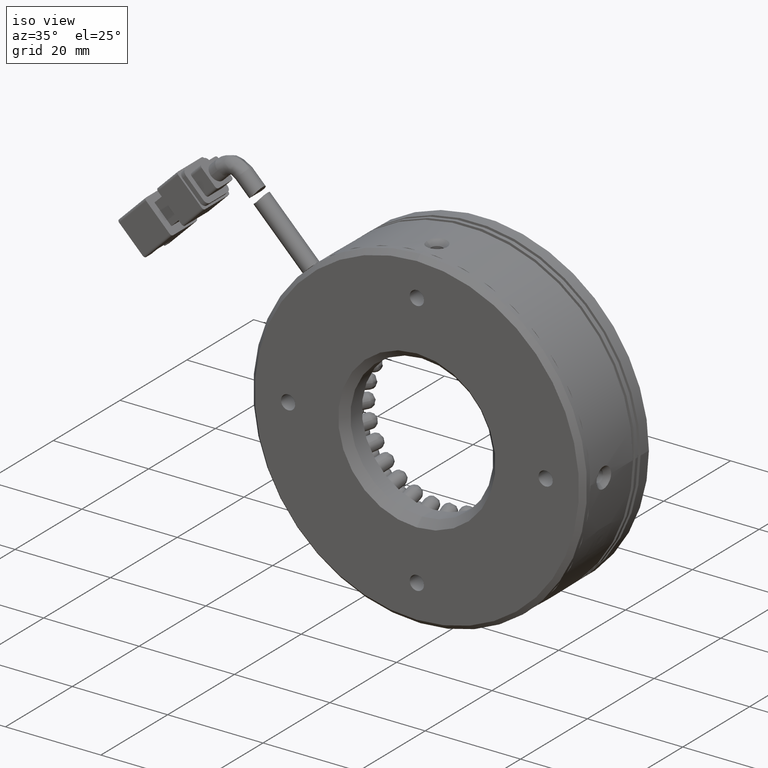
[diagram: clean part render]
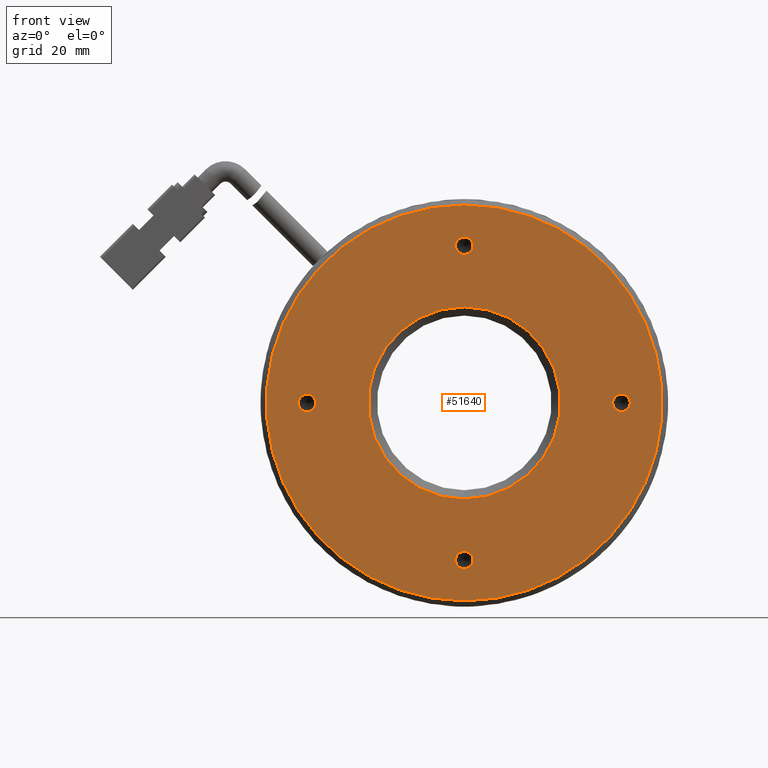
[diagram: tour spotlight — one face highlighted and labeled with its STEP entity id]
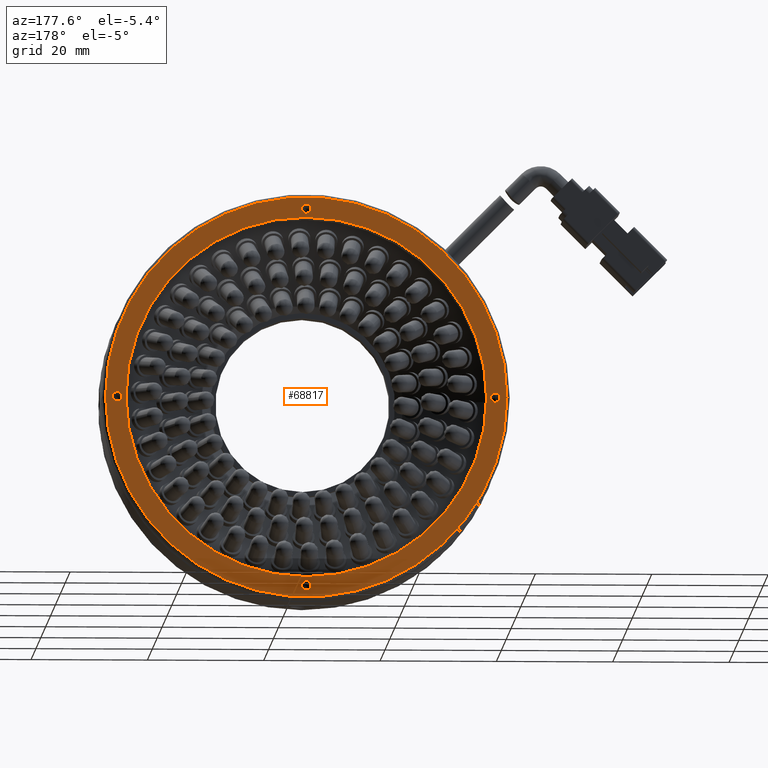
[diagram: tour spotlight — one face highlighted and labeled with its STEP entity id]
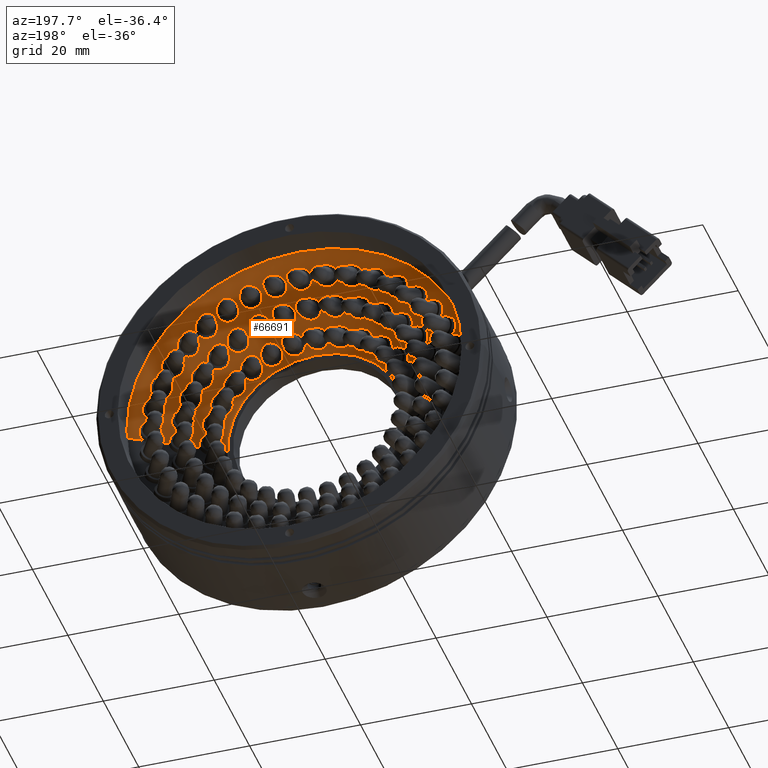
[diagram: tour spotlight — one face highlighted and labeled with its STEP entity id]
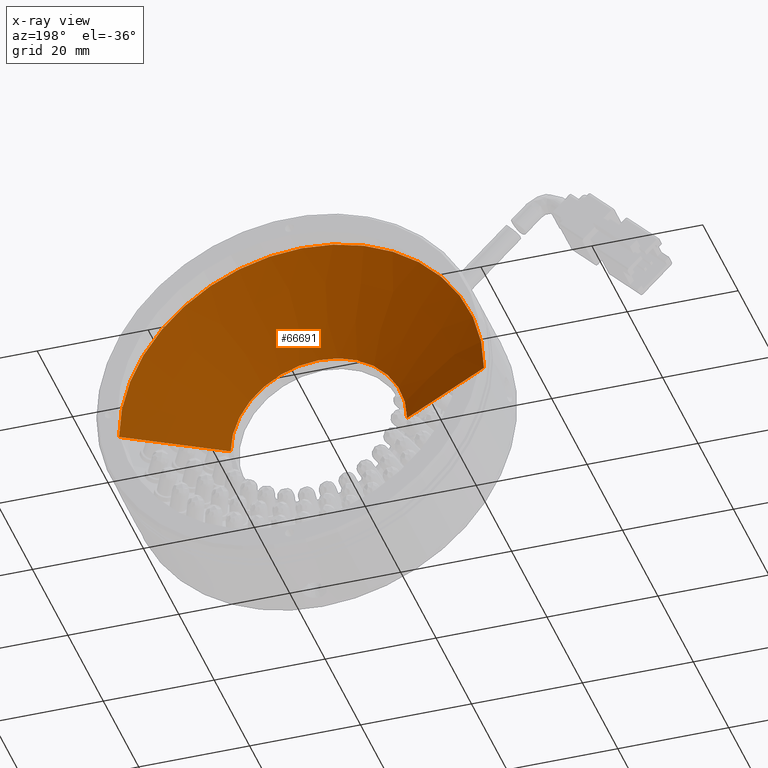
[diagram: x-ray of the same camera — body ghosted, this tour face saturated]
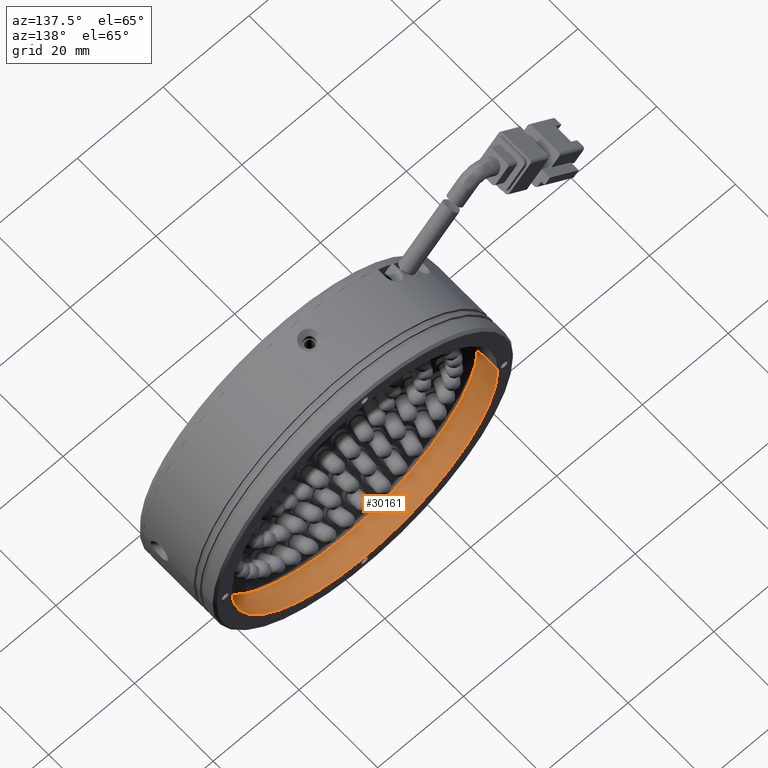
[diagram: tour spotlight — one face highlighted and labeled with its STEP entity id]
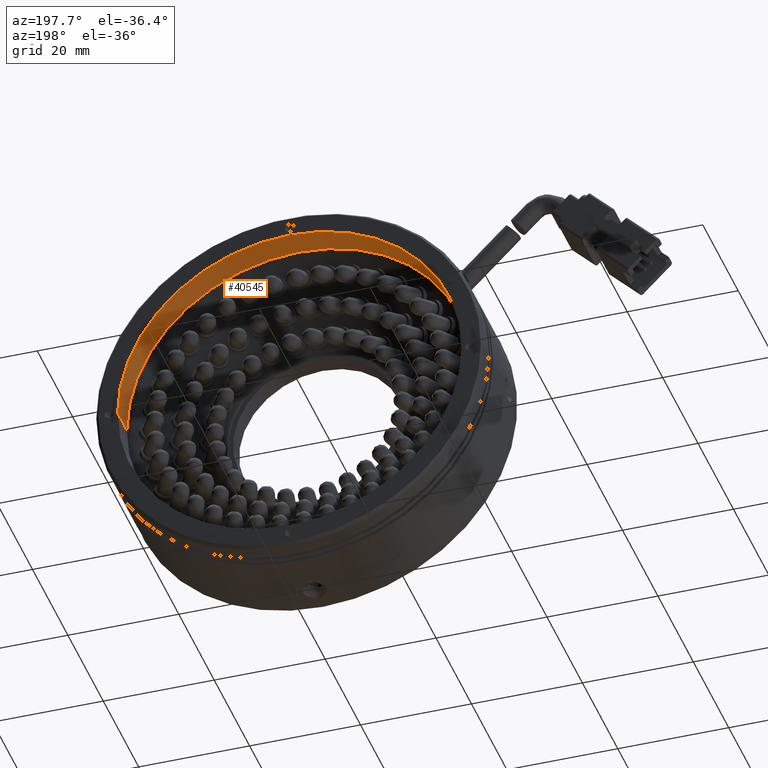
[diagram: tour spotlight — one face highlighted and labeled with its STEP entity id]
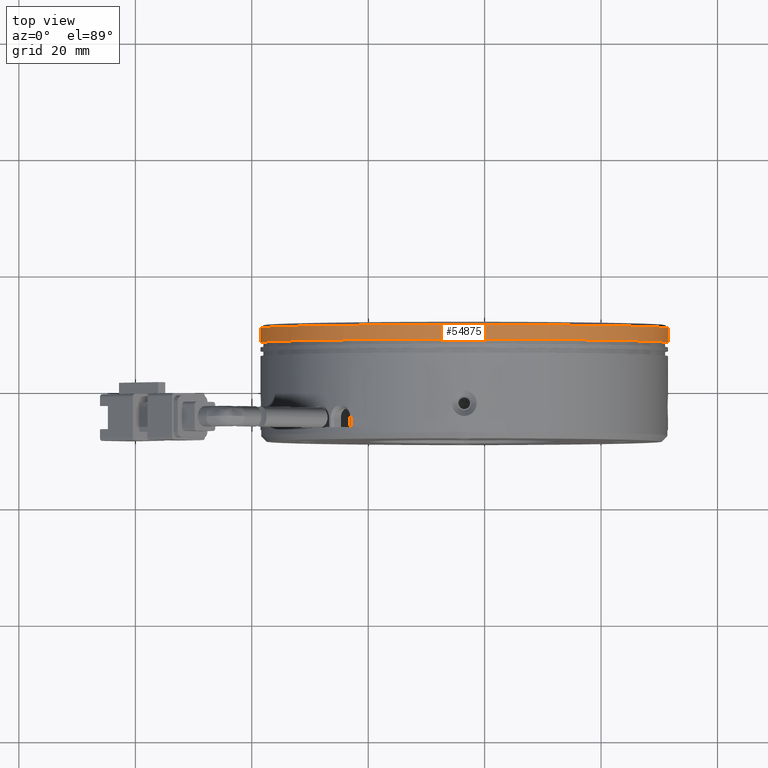
[diagram: tour spotlight — one face highlighted and labeled with its STEP entity id]
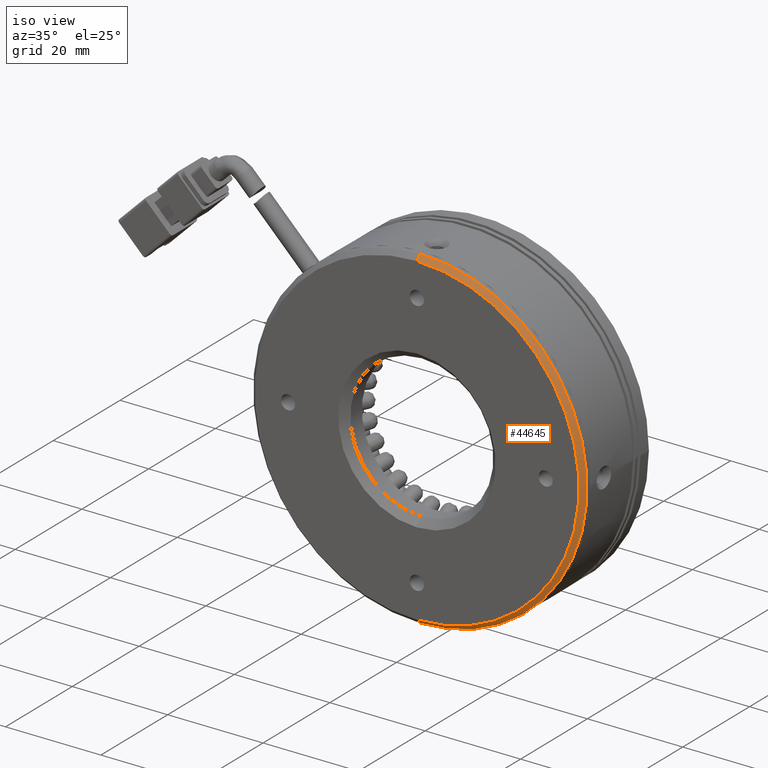
[diagram: tour spotlight — one face highlighted and labeled with its STEP entity id]
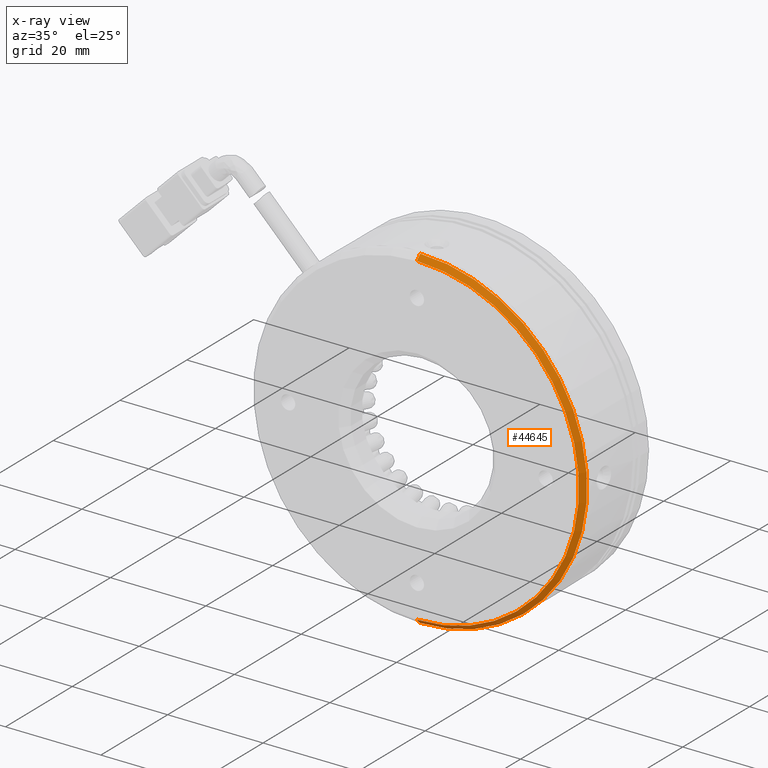
[diagram: x-ray of the same camera — body ghosted, this tour face saturated]
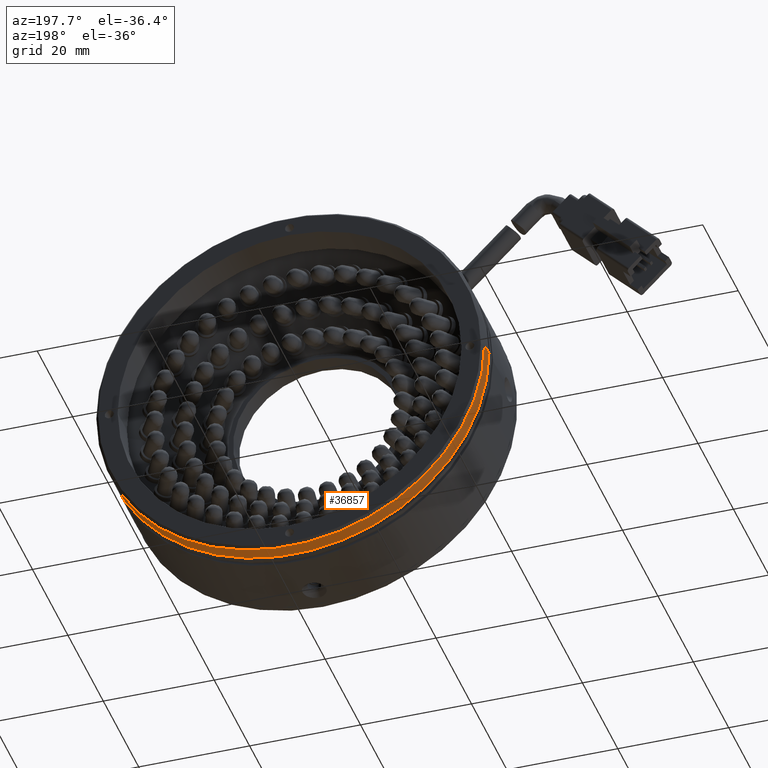
[diagram: tour spotlight — one face highlighted and labeled with its STEP entity id]
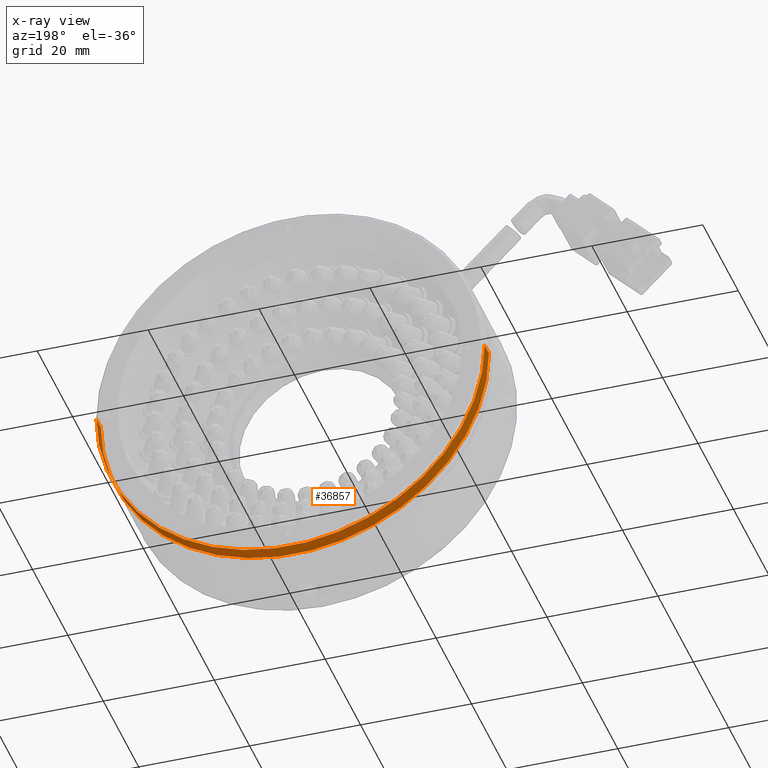
[diagram: x-ray of the same camera — body ghosted, this tour face saturated]
A machine part: a face-by-face anatomy tour. The part has 1954 B-rep faces; the first image is the clean iso view, then the 8 largest visible faces are spotlighted one at a time (largest first), each with its STEP entity span.

Face 1 — front view, entity #51640. In plain terms, the highlighted planar face has unit normal (0, -1, 0).
Definition (entity closure, byte-faithful):
#941 = CARTESIAN_POINT ( 'NONE',  ( -3.499229287090545300, 31.07623868994505800, -28.50000000000000000 ) ) ;
#1166 = CARTESIAN_POINT ( 'NONE',  ( -3.499229287090538600, 31.07623868994505800, 0.0000000000000000000 ) ) ;
#1881 = EDGE_LOOP ( 'NONE', ( #38550, #59611 ) ) ;
#2691 = EDGE_CURVE ( 'NONE', #34625, #22174, #56121, .T. ) ;
#3377 = EDGE_CURVE ( 'NONE', #65787, #82237, #54757, .T. ) ;
#3824 = ORIENTED_EDGE ( 'NONE', *, *, #18593, .T. ) ;
#6378 = AXIS2_PLACEMENT_3D ( 'NONE', #79701, #37764, #86730 ) ;
#6756 = DIRECTION ( 'NONE',  ( 0.0000000000000000000, -1.000000000000000000, -0.0000000000000000000 ) ) ;
#8187 = DIRECTION ( 'NONE',  ( 0.0000000000000000000, 0.0000000000000000000, -1.000000000000000000 ) ) ;
#8671 = AXIS2_PLACEMENT_3D ( 'NONE', #14445, #63341, #21447 ) ;
#8914 = AXIS2_PLACEMENT_3D ( 'NONE', #80669, #38718, #87684 ) ;
#10877 = VERTEX_POINT ( 'NONE', #28443 ) ;
#11444 = CARTESIAN_POINT ( 'NONE',  ( -3.499229287090545300, 31.07623868994505800, -27.00000000000000000 ) ) ;
#12126 = CIRCLE ( 'NONE', #25657, 1.500000000000001300 ) ;
#12301 = ORIENTED_EDGE ( 'NONE', *, *, #14550, .T. ) ;
#14445 = CARTESIAN_POINT ( 'NONE',  ( -38.49922928709052200, 31.07623868994505800, 0.0000000000000000000 ) ) ;
#14550 = EDGE_CURVE ( 'NONE', #17597, #58041, #64328, .T. ) ;
#14962 = EDGE_LOOP ( 'NONE', ( #26772, #28349 ) ) ;
#15700 = CIRCLE ( 'NONE', #62148, 1.500000000000001300 ) ;
#17064 = EDGE_LOOP ( 'NONE', ( #44027, #12301 ) ) ;
#17129 = CARTESIAN_POINT ( 'NONE',  ( 23.50077071290945000, 31.07623868994505800, 0.0000000000000000000 ) ) ;
#17597 = VERTEX_POINT ( 'NONE', #63589 ) ;
#18286 = EDGE_CURVE ( 'NONE', #10877, #41958, #15700, .T. ) ;
#18462 = DIRECTION ( 'NONE',  ( 0.0000000000000000000, 0.0000000000000000000, -1.000000000000000000 ) ) ;
#18593 = EDGE_CURVE ( 'NONE', #54168, #90053, #56046, .T. ) ;
#21447 = DIRECTION ( 'NONE',  ( 0.0000000000000000000, -0.0000000000000000000, -1.000000000000000000 ) ) ;
#22174 = VERTEX_POINT ( 'NONE', #36295 ) ;
#23085 = DIRECTION ( 'NONE',  ( 0.0000000000000000000, 1.000000000000000000, 0.0000000000000000000 ) ) ;
#23534 = ORIENTED_EDGE ( 'NONE', *, *, #18286, .T. ) ;
#23947 = EDGE_CURVE ( 'NONE', #51920, #35992, #47134, .T. ) ;
#24121 = DIRECTION ( 'NONE',  ( 0.0000000000000000000, 0.0000000000000000000, -1.000000000000000000 ) ) ;
#24631 = CIRCLE ( 'NONE', #69310, 1.500000000000001300 ) ;
#25657 = AXIS2_PLACEMENT_3D ( 'NONE', #36323, #85277, #43354 ) ;
#26772 = ORIENTED_EDGE ( 'NONE', *, *, #3377, .T. ) ;
#27599 = EDGE_CURVE ( 'NONE', #82237, #65787, #51006, .T. ) ;
#28170 = PLANE ( 'NONE',  #8671 ) ;
#28349 = ORIENTED_EDGE ( 'NONE', *, *, #27599, .T. ) ;
#28443 = CARTESIAN_POINT ( 'NONE',  ( -3.499229287090545300, 31.07623868994505800, 28.50000000000000000 ) ) ;
#30192 = DIRECTION ( 'NONE',  ( 0.0000000000000000000, -1.000000000000000000, -0.0000000000000000000 ) ) ;
#33815 = CARTESIAN_POINT ( 'NONE',  ( -3.499229287090545300, 31.07623868994505800, 25.50000000000000000 ) ) ;
#34092 = ORIENTED_EDGE ( 'NONE', *, *, #65651, .T. ) ;
#34260 = FACE_BOUND ( 'NONE', #14962, .T. ) ;
#34625 = VERTEX_POINT ( 'NONE', #67790 ) ;
#35992 = VERTEX_POINT ( 'NONE', #44361 ) ;
#36295 = CARTESIAN_POINT ( 'NONE',  ( -3.499229287090534200, 31.07623868994505000, -33.99999999999997900 ) ) ;
#36323 = CARTESIAN_POINT ( 'NONE',  ( -3.499229287090545300, 31.07623868994505800, 27.00000000000000000 ) ) ;
#37209 = CARTESIAN_POINT ( 'NONE',  ( -3.499229287090545300, 31.07623868994505800, 27.00000000000000000 ) ) ;
#37473 = CIRCLE ( 'NONE', #82036, 16.50000000000002800 ) ;
#37764 = DIRECTION ( 'NONE',  ( 0.0000000000000000000, 1.000000000000000000, 0.0000000000000000000 ) ) ;
#38550 = ORIENTED_EDGE ( 'NONE', *, *, #2691, .T. ) ;
#38718 = DIRECTION ( 'NONE',  ( -0.0000000000000000000, 1.000000000000000000, -0.0000000000000000000 ) ) ;
#39317 = EDGE_CURVE ( 'NONE', #22174, #34625, #59267, .T. ) ;
#39514 = ORIENTED_EDGE ( 'NONE', *, *, #40786, .T. ) ;
#39932 = CARTESIAN_POINT ( 'NONE',  ( 23.50077071290945000, 31.07623868994505800, -1.500000000000001300 ) ) ;
#40786 = EDGE_CURVE ( 'NONE', #90053, #54168, #50489, .T. ) ;
#40791 = CARTESIAN_POINT ( 'NONE',  ( -3.499229287090545300, 31.07623868994505800, -27.00000000000000000 ) ) ;
#41808 = DIRECTION ( 'NONE',  ( 0.0000000000000000000, 1.000000000000000000, 0.0000000000000000000 ) ) ;
#41958 = VERTEX_POINT ( 'NONE', #33815 ) ;
#43354 = DIRECTION ( 'NONE',  ( 0.0000000000000000000, 0.0000000000000000000, -1.000000000000000000 ) ) ;
#44027 = ORIENTED_EDGE ( 'NONE', *, *, #54345, .T. ) ;
#44237 = DIRECTION ( 'NONE',  ( 0.0000000000000000000, 0.0000000000000000000, -1.000000000000000000 ) ) ;
#44361 = CARTESIAN_POINT ( 'NONE',  ( -3.499229287090538600, 31.07623868994505800, -16.50000000000002800 ) ) ;
#45493 = EDGE_LOOP ( 'NONE', ( #3824, #39514 ) ) ;
#47134 = CIRCLE ( 'NONE', #8914, 16.50000000000002800 ) ;
#47832 = DIRECTION ( 'NONE',  ( 0.0000000000000000000, 0.0000000000000000000, -1.000000000000000000 ) ) ;
#48086 = CARTESIAN_POINT ( 'NONE',  ( -3.499229287090545300, 31.07623868994505800, -25.50000000000000000 ) ) ;
#48677 = CARTESIAN_POINT ( 'NONE',  ( -3.499229287090538600, 31.07623868994505000, 0.0000000000000000000 ) ) ;
#50095 = DIRECTION ( 'NONE',  ( -0.0000000000000000000, 1.000000000000000000, -0.0000000000000000000 ) ) ;
#50314 = CARTESIAN_POINT ( 'NONE',  ( -30.49922928709055000, 31.07623868994505800, 1.499999999999998700 ) ) ;
#50489 = CIRCLE ( 'NONE', #81395, 1.500000000000001300 ) ;
#50675 = FACE_OUTER_BOUND ( 'NONE', #1881, .T. ) ;
#51006 = CIRCLE ( 'NONE', #53997, 1.499999999999998700 ) ;
#51640 = ADVANCED_FACE ( 'NONE', ( #52929, #90081, #87924, #34260, #71462, #50675 ), #28170, .T. ) ;
#51920 = VERTEX_POINT ( 'NONE', #53305 ) ;
#52929 = FACE_BOUND ( 'NONE', #45493, .T. ) ;
#53305 = CARTESIAN_POINT ( 'NONE',  ( -3.499229287090536400, 31.07623868994505800, 16.50000000000002800 ) ) ;
#53383 = EDGE_LOOP ( 'NONE', ( #34092, #23534 ) ) ;
#53997 = AXIS2_PLACEMENT_3D ( 'NONE', #64957, #23085, #72048 ) ;
#54168 = VERTEX_POINT ( 'NONE', #941 ) ;
#54345 = EDGE_CURVE ( 'NONE', #58041, #17597, #24631, .T. ) ;
#54757 = CIRCLE ( 'NONE', #89045, 1.499999999999998700 ) ;
#55721 = DIRECTION ( 'NONE',  ( 0.0000000000000000000, 0.0000000000000000000, 1.000000000000000000 ) ) ;
#56046 = CIRCLE ( 'NONE', #72805, 1.500000000000001300 ) ;
#56121 = CIRCLE ( 'NONE', #64870, 33.99999999999997900 ) ;
#58041 = VERTEX_POINT ( 'NONE', #39932 ) ;
#58291 = ORIENTED_EDGE ( 'NONE', *, *, #86415, .T. ) ;
#59267 = CIRCLE ( 'NONE', #70635, 33.99999999999997900 ) ;
#59611 = ORIENTED_EDGE ( 'NONE', *, *, #39317, .T. ) ;
#60337 = DIRECTION ( 'NONE',  ( 0.0000000000000000000, 1.000000000000000000, 0.0000000000000000000 ) ) ;
#62148 = AXIS2_PLACEMENT_3D ( 'NONE', #37209, #86182, #44237 ) ;
#63341 = DIRECTION ( 'NONE',  ( 0.0000000000000000000, -1.000000000000000000, 0.0000000000000000000 ) ) ;
#63589 = CARTESIAN_POINT ( 'NONE',  ( 23.50077071290945000, 31.07623868994505800, 1.500000000000001300 ) ) ;
#64328 = CIRCLE ( 'NONE', #6378, 1.500000000000001300 ) ;
#64870 = AXIS2_PLACEMENT_3D ( 'NONE', #72135, #30192, #79193 ) ;
#64957 = CARTESIAN_POINT ( 'NONE',  ( -30.49922928709055000, 31.07623868994505800, 2.710505431213761100E-017 ) ) ;
#65651 = EDGE_CURVE ( 'NONE', #41958, #10877, #12126, .T. ) ;
#65787 = VERTEX_POINT ( 'NONE', #72713 ) ;
#66011 = DIRECTION ( 'NONE',  ( 0.0000000000000000000, 1.000000000000000000, 0.0000000000000000000 ) ) ;
#67790 = CARTESIAN_POINT ( 'NONE',  ( -3.499229287090538600, 31.07623868994505000, 33.99999999999997900 ) ) ;
#69310 = AXIS2_PLACEMENT_3D ( 'NONE', #17129, #66011, #24121 ) ;
#69662 = ORIENTED_EDGE ( 'NONE', *, *, #23947, .T. ) ;
#70635 = AXIS2_PLACEMENT_3D ( 'NONE', #48677, #6756, #55721 ) ;
#71462 = FACE_BOUND ( 'NONE', #90577, .T. ) ;
#72048 = DIRECTION ( 'NONE',  ( 0.0000000000000000000, 0.0000000000000000000, -1.000000000000000000 ) ) ;
#72135 = CARTESIAN_POINT ( 'NONE',  ( -3.499229287090538600, 31.07623868994505000, 0.0000000000000000000 ) ) ;
#72713 = CARTESIAN_POINT ( 'NONE',  ( -30.49922928709055000, 31.07623868994505800, -1.499999999999998700 ) ) ;
#72805 = AXIS2_PLACEMENT_3D ( 'NONE', #40791, #89772, #47832 ) ;
#79193 = DIRECTION ( 'NONE',  ( 0.0000000000000000000, 0.0000000000000000000, 1.000000000000000000 ) ) ;
#79701 = CARTESIAN_POINT ( 'NONE',  ( 23.50077071290945000, 31.07623868994505800, 0.0000000000000000000 ) ) ;
#80669 = CARTESIAN_POINT ( 'NONE',  ( -3.499229287090538600, 31.07623868994505800, 0.0000000000000000000 ) ) ;
#81395 = AXIS2_PLACEMENT_3D ( 'NONE', #11444, #60337, #18462 ) ;
#82036 = AXIS2_PLACEMENT_3D ( 'NONE', #1166, #50095, #8187 ) ;
#82237 = VERTEX_POINT ( 'NONE', #50314 ) ;
#83736 = CARTESIAN_POINT ( 'NONE',  ( -30.49922928709055000, 31.07623868994505800, 2.710505431213761100E-017 ) ) ;
#85277 = DIRECTION ( 'NONE',  ( 0.0000000000000000000, 1.000000000000000000, 0.0000000000000000000 ) ) ;
#86182 = DIRECTION ( 'NONE',  ( 0.0000000000000000000, 1.000000000000000000, 0.0000000000000000000 ) ) ;
#86415 = EDGE_CURVE ( 'NONE', #35992, #51920, #37473, .T. ) ;
#86730 = DIRECTION ( 'NONE',  ( 0.0000000000000000000, 0.0000000000000000000, -1.000000000000000000 ) ) ;
#87684 = DIRECTION ( 'NONE',  ( 0.0000000000000000000, 0.0000000000000000000, -1.000000000000000000 ) ) ;
#87924 = FACE_BOUND ( 'NONE', #17064, .T. ) ;
#89045 = AXIS2_PLACEMENT_3D ( 'NONE', #83736, #41808, #90772 ) ;
#89772 = DIRECTION ( 'NONE',  ( 0.0000000000000000000, 1.000000000000000000, 0.0000000000000000000 ) ) ;
#90053 = VERTEX_POINT ( 'NONE', #48086 ) ;
#90081 = FACE_BOUND ( 'NONE', #53383, .T. ) ;
#90577 = EDGE_LOOP ( 'NONE', ( #58291, #69662 ) ) ;
#90772 = DIRECTION ( 'NONE',  ( 0.0000000000000000000, 0.0000000000000000000, -1.000000000000000000 ) ) ;

Face 2 — auxiliary view, entity #68817. In plain terms, the highlighted planar face has unit normal (0, 1, 0).
Definition (entity closure, byte-faithful):
#141 = ORIENTED_EDGE ( 'NONE', *, *, #24473, .T. ) ;
#189 = EDGE_CURVE ( 'NONE', #47876, #30437, #87108, .T. ) ;
#234 = AXIS2_PLACEMENT_3D ( 'NONE', #6126, #55094, #13156 ) ;
#1588 = FACE_BOUND ( 'NONE', #2712, .T. ) ;
#2418 = CARTESIAN_POINT ( 'NONE',  ( -3.499229287090496400, 51.07623868994505800, -6.938893903907228400E-015 ) ) ;
#2497 = ORIENTED_EDGE ( 'NONE', *, *, #71999, .T. ) ;
#2712 = EDGE_LOOP ( 'NONE', ( #22106, #82778 ) ) ;
#3459 = CIRCLE ( 'NONE', #69104, 0.7999999999999947200 ) ;
#3623 = AXIS2_PLACEMENT_3D ( 'NONE', #62589, #20707, #69667 ) ;
#6091 = CARTESIAN_POINT ( 'NONE',  ( 29.00077071290950300, 51.07623868994505800, -3.330669073875469600E-013 ) ) ;
#6126 = CARTESIAN_POINT ( 'NONE',  ( -35.99922928709050000, 51.07623868994505800, 1.040834085586084300E-013 ) ) ;
#6599 = AXIS2_PLACEMENT_3D ( 'NONE', #25783, #74758, #32843 ) ;
#7380 = CARTESIAN_POINT ( 'NONE',  ( -2.699229287090507200, 51.07623868994505800, 32.49999999999998600 ) ) ;
#7591 = AXIS2_PLACEMENT_3D ( 'NONE', #79576, #37636, #86605 ) ;
#8155 = FACE_BOUND ( 'NONE', #8947, .T. ) ;
#8280 = CARTESIAN_POINT ( 'NONE',  ( -35.99922928709050000, 51.07623868994505800, 1.040834085586084300E-013 ) ) ;
#8947 = EDGE_LOOP ( 'NONE', ( #38501, #79039 ) ) ;
#8995 = CARTESIAN_POINT ( 'NONE',  ( -3.499229287090489300, 51.07623868994505800, -35.00000000000001400 ) ) ;
#9412 = DIRECTION ( 'NONE',  ( 1.000000000000000000, 0.0000000000000000000, 1.942890293094023700E-016 ) ) ;
#13121 = DIRECTION ( 'NONE',  ( -1.000000000000000000, 0.0000000000000000000, -1.942890293093821800E-016 ) ) ;
#13156 = DIRECTION ( 'NONE',  ( -1.000000000000000000, 0.0000000000000000000, -1.942890293093975900E-016 ) ) ;
#13198 = CARTESIAN_POINT ( 'NONE',  ( -3.499229287090502200, 51.07623868994505800, 32.49999999999998600 ) ) ;
#14860 = CIRCLE ( 'NONE', #71048, 0.7999999999999986000 ) ;
#15006 = CARTESIAN_POINT ( 'NONE',  ( 28.20077071290951000, 51.07623868994505800, -3.332223386109944400E-013 ) ) ;
#15290 = DIRECTION ( 'NONE',  ( -1.000000000000000000, 0.0000000000000000000, -1.942890293093975900E-016 ) ) ;
#15589 = AXIS2_PLACEMENT_3D ( 'NONE', #2418, #51350, #9412 ) ;
#15637 = EDGE_CURVE ( 'NONE', #26985, #79813, #77008, .T. ) ;
#19985 = CARTESIAN_POINT ( 'NONE',  ( 29.80077071290950000, 51.07623868994505800, -3.328135044201676600E-013 ) ) ;
#20120 = FACE_BOUND ( 'NONE', #37277, .T. ) ;
#20199 = DIRECTION ( 'NONE',  ( -1.000000000000000000, 0.0000000000000000000, 0.0000000000000000000 ) ) ;
#20707 = DIRECTION ( 'NONE',  ( -0.0000000000000000000, -1.000000000000000000, -0.0000000000000000000 ) ) ;
#22106 = ORIENTED_EDGE ( 'NONE', *, *, #86631, .T. ) ;
#22749 = EDGE_CURVE ( 'NONE', #33603, #86284, #69373, .T. ) ;
#24473 = EDGE_CURVE ( 'NONE', #79813, #26985, #81624, .T. ) ;
#24851 = DIRECTION ( 'NONE',  ( -0.0000000000000000000, -1.000000000000000000, -0.0000000000000000000 ) ) ;
#25654 = ORIENTED_EDGE ( 'NONE', *, *, #76318, .T. ) ;
#25783 = CARTESIAN_POINT ( 'NONE',  ( -3.499229287090496400, 51.07623868994505800, -6.938893903907228400E-015 ) ) ;
#26734 = VERTEX_POINT ( 'NONE', #62035 ) ;
#26882 = DIRECTION ( 'NONE',  ( 0.0000000000000000000, 1.000000000000000000, 0.0000000000000000000 ) ) ;
#26985 = VERTEX_POINT ( 'NONE', #85645 ) ;
#27115 = AXIS2_PLACEMENT_3D ( 'NONE', #8280, #57184, #15290 ) ;
#27905 = CARTESIAN_POINT ( 'NONE',  ( 27.50077071290950300, 51.07623868994505800, 2.880471082041037800E-015 ) ) ;
#28703 = CARTESIAN_POINT ( 'NONE',  ( 29.00077071290950300, 51.07623868994505800, -3.330669073875469600E-013 ) ) ;
#29231 = AXIS2_PLACEMENT_3D ( 'NONE', #37379, #86363, #44436 ) ;
#30396 = VERTEX_POINT ( 'NONE', #7380 ) ;
#30437 = VERTEX_POINT ( 'NONE', #15006 ) ;
#32843 = DIRECTION ( 'NONE',  ( 1.000000000000000000, 0.0000000000000000000, 1.942890293094023700E-016 ) ) ;
#33350 = CIRCLE ( 'NONE', #7591, 0.7999999999999947200 ) ;
#33603 = VERTEX_POINT ( 'NONE', #27905 ) ;
#34739 = EDGE_LOOP ( 'NONE', ( #65005, #58458 ) ) ;
#35369 = DIRECTION ( 'NONE',  ( -0.0000000000000000000, -1.000000000000000000, -0.0000000000000000000 ) ) ;
#35779 = DIRECTION ( 'NONE',  ( -1.000000000000000000, 0.0000000000000000000, -1.942890293093821800E-016 ) ) ;
#36594 = FACE_BOUND ( 'NONE', #34739, .T. ) ;
#36631 = CARTESIAN_POINT ( 'NONE',  ( 31.00077071290950700, 51.07623868994505800, -2.359223927328467500E-016 ) ) ;
#37277 = EDGE_LOOP ( 'NONE', ( #51946, #58208 ) ) ;
#37379 = CARTESIAN_POINT ( 'NONE',  ( -3.499229287090496400, 51.07623868994505800, -6.938893903907228400E-015 ) ) ;
#37636 = DIRECTION ( 'NONE',  ( -0.0000000000000000000, -1.000000000000000000, -0.0000000000000000000 ) ) ;
#38501 = ORIENTED_EDGE ( 'NONE', *, *, #42379, .T. ) ;
#38716 = EDGE_LOOP ( 'NONE', ( #141, #40981 ) ) ;
#39640 = VERTEX_POINT ( 'NONE', #86918 ) ;
#40327 = AXIS2_PLACEMENT_3D ( 'NONE', #6091, #55067, #13121 ) ;
#40610 = CARTESIAN_POINT ( 'NONE',  ( -34.49922928709049300, 51.07623868994505800, -1.296185381249870100E-014 ) ) ;
#40981 = ORIENTED_EDGE ( 'NONE', *, *, #15637, .T. ) ;
#42379 = EDGE_CURVE ( 'NONE', #64138, #39640, #14860, .T. ) ;
#44436 = DIRECTION ( 'NONE',  ( -1.000000000000000000, 0.0000000000000000000, -1.942890293094023700E-016 ) ) ;
#45618 = CIRCLE ( 'NONE', #27115, 0.7999999999999951600 ) ;
#45765 = CARTESIAN_POINT ( 'NONE',  ( -4.299229287090488700, 51.07623868994505800, -32.50000000000000700 ) ) ;
#47876 = VERTEX_POINT ( 'NONE', #19985 ) ;
#49673 = AXIS2_PLACEMENT_3D ( 'NONE', #8995, #26882, #75846 ) ;
#51350 = DIRECTION ( 'NONE',  ( 0.0000000000000000000, 1.000000000000000000, -0.0000000000000000000 ) ) ;
#51946 = ORIENTED_EDGE ( 'NONE', *, *, #57617, .T. ) ;
#53737 = CIRCLE ( 'NONE', #3623, 31.00000000000000000 ) ;
#54703 = EDGE_CURVE ( 'NONE', #39640, #64138, #57251, .T. ) ;
#55067 = DIRECTION ( 'NONE',  ( -0.0000000000000000000, -1.000000000000000000, -0.0000000000000000000 ) ) ;
#55094 = DIRECTION ( 'NONE',  ( -0.0000000000000000000, -1.000000000000000000, -0.0000000000000000000 ) ) ;
#55196 = FACE_OUTER_BOUND ( 'NONE', #38716, .T. ) ;
#55955 = AXIS2_PLACEMENT_3D ( 'NONE', #77279, #35369, #84317 ) ;
#57184 = DIRECTION ( 'NONE',  ( -0.0000000000000000000, -1.000000000000000000, -0.0000000000000000000 ) ) ;
#57251 = CIRCLE ( 'NONE', #55955, 0.7999999999999986000 ) ;
#57617 = EDGE_CURVE ( 'NONE', #86284, #33603, #53737, .T. ) ;
#57871 = PLANE ( 'NONE',  #49673 ) ;
#58208 = ORIENTED_EDGE ( 'NONE', *, *, #22749, .T. ) ;
#58354 = VERTEX_POINT ( 'NONE', #71082 ) ;
#58458 = ORIENTED_EDGE ( 'NONE', *, *, #189, .T. ) ;
#61971 = CIRCLE ( 'NONE', #40327, 0.7999999999999951600 ) ;
#62035 = CARTESIAN_POINT ( 'NONE',  ( -4.299229287090496700, 51.07623868994505800, 32.49999999999998600 ) ) ;
#62099 = DIRECTION ( 'NONE',  ( -0.0000000000000000000, -1.000000000000000000, -0.0000000000000000000 ) ) ;
#62589 = CARTESIAN_POINT ( 'NONE',  ( -3.499229287090496400, 51.07623868994505800, -6.938893903907228400E-015 ) ) ;
#64138 = VERTEX_POINT ( 'NONE', #45765 ) ;
#64745 = VERTEX_POINT ( 'NONE', #73497 ) ;
#64792 = CIRCLE ( 'NONE', #234, 0.7999999999999951600 ) ;
#65005 = ORIENTED_EDGE ( 'NONE', *, *, #81515, .T. ) ;
#66728 = CARTESIAN_POINT ( 'NONE',  ( -3.499229287090489700, 51.07623868994505800, -32.50000000000000700 ) ) ;
#68817 = ADVANCED_FACE ( 'NONE', ( #20120, #55196, #8155, #73818, #1588, #36594 ), #57871, .T. ) ;
#69104 = AXIS2_PLACEMENT_3D ( 'NONE', #13198, #62099, #20199 ) ;
#69274 = EDGE_LOOP ( 'NONE', ( #25654, #2497 ) ) ;
#69373 = CIRCLE ( 'NONE', #29231, 31.00000000000000000 ) ;
#69667 = DIRECTION ( 'NONE',  ( -1.000000000000000000, 0.0000000000000000000, -1.942890293094023700E-016 ) ) ;
#71048 = AXIS2_PLACEMENT_3D ( 'NONE', #66728, #24851, #73827 ) ;
#71082 = CARTESIAN_POINT ( 'NONE',  ( -35.19922928709050300, 51.07623868994505800, 1.043368115259877400E-013 ) ) ;
#71999 = EDGE_CURVE ( 'NONE', #58354, #64745, #64792, .T. ) ;
#73497 = CARTESIAN_POINT ( 'NONE',  ( -36.79922928709049000, 51.07623868994505800, 1.039279773351609100E-013 ) ) ;
#73818 = FACE_BOUND ( 'NONE', #69274, .T. ) ;
#73827 = DIRECTION ( 'NONE',  ( -1.000000000000000000, 0.0000000000000000000, 0.0000000000000000000 ) ) ;
#74758 = DIRECTION ( 'NONE',  ( 0.0000000000000000000, 1.000000000000000000, -0.0000000000000000000 ) ) ;
#75846 = DIRECTION ( 'NONE',  ( -1.000000000000000000, 0.0000000000000000000, -1.942890293094023500E-016 ) ) ;
#76318 = EDGE_CURVE ( 'NONE', #64745, #58354, #45618, .T. ) ;
#77008 = CIRCLE ( 'NONE', #15589, 34.50000000000000000 ) ;
#77279 = CARTESIAN_POINT ( 'NONE',  ( -3.499229287090489700, 51.07623868994505800, -32.50000000000000700 ) ) ;
#77693 = DIRECTION ( 'NONE',  ( -0.0000000000000000000, -1.000000000000000000, -0.0000000000000000000 ) ) ;
#79039 = ORIENTED_EDGE ( 'NONE', *, *, #54703, .T. ) ;
#79250 = EDGE_CURVE ( 'NONE', #30396, #26734, #33350, .T. ) ;
#79576 = CARTESIAN_POINT ( 'NONE',  ( -3.499229287090502200, 51.07623868994505800, 32.49999999999998600 ) ) ;
#79813 = VERTEX_POINT ( 'NONE', #36631 ) ;
#81515 = EDGE_CURVE ( 'NONE', #30437, #47876, #61971, .T. ) ;
#81624 = CIRCLE ( 'NONE', #6599, 34.50000000000000000 ) ;
#82510 = AXIS2_PLACEMENT_3D ( 'NONE', #28703, #77693, #35779 ) ;
#82778 = ORIENTED_EDGE ( 'NONE', *, *, #79250, .T. ) ;
#84317 = DIRECTION ( 'NONE',  ( -1.000000000000000000, 0.0000000000000000000, 0.0000000000000000000 ) ) ;
#85645 = CARTESIAN_POINT ( 'NONE',  ( -37.99922928709050000, 51.07623868994505800, -9.434790045371908900E-015 ) ) ;
#86284 = VERTEX_POINT ( 'NONE', #40610 ) ;
#86363 = DIRECTION ( 'NONE',  ( -0.0000000000000000000, -1.000000000000000000, -0.0000000000000000000 ) ) ;
#86605 = DIRECTION ( 'NONE',  ( -1.000000000000000000, 0.0000000000000000000, 0.0000000000000000000 ) ) ;
#86631 = EDGE_CURVE ( 'NONE', #26734, #30396, #3459, .T. ) ;
#86918 = CARTESIAN_POINT ( 'NONE',  ( -2.699229287090490800, 51.07623868994505800, -32.50000000000000700 ) ) ;
#87108 = CIRCLE ( 'NONE', #82510, 0.7999999999999951600 ) ;

Face 3 — auxiliary view, entity #66691. An x-ray twin of the same camera follows (body ghosted, this face saturated) — the face is partly hidden behind the body. In plain terms, the highlighted conical surface has half-angle 60 deg.
Definition (entity closure, byte-faithful):
#5098 = VERTEX_POINT ( 'NONE', #61178 ) ;
#5335 = AXIS2_PLACEMENT_3D ( 'NONE', #12217, #61119, #19221 ) ;
#5567 = CARTESIAN_POINT ( 'NONE',  ( -3.499229287090495100, 34.51850366302609500, 15.90000000000000000 ) ) ;
#7411 = CONICAL_SURFACE ( 'NONE', #71624, 32.90000000000001300, 1.047197551196596300 ) ;
#7896 = ORIENTED_EDGE ( 'NONE', *, *, #47406, .T. ) ;
#11166 = CIRCLE ( 'NONE', #40369, 15.90000000000000000 ) ;
#12217 = CARTESIAN_POINT ( 'NONE',  ( -3.499229287090496900, 34.51850366302609500, 0.0000000000000000000 ) ) ;
#14203 = VECTOR ( 'NONE', #75677, 999.9999999999998900 ) ;
#14607 = DIRECTION ( 'NONE',  ( 0.0000000000000000000, -1.000000000000000000, 0.0000000000000000000 ) ) ;
#15056 = AXIS2_PLACEMENT_3D ( 'NONE', #78020, #36095, #85045 ) ;
#16464 = ORIENTED_EDGE ( 'NONE', *, *, #57467, .T. ) ;
#19221 = DIRECTION ( 'NONE',  ( 0.0000000000000000000, 0.0000000000000000000, -1.000000000000000000 ) ) ;
#19383 = CARTESIAN_POINT ( 'NONE',  ( 29.40077071290951600, 44.33345823924977900, 4.029087969194793600E-015 ) ) ;
#20747 = AXIS2_PLACEMENT_3D ( 'NONE', #78028, #36105, #85056 ) ;
#24081 = EDGE_CURVE ( 'NONE', #79507, #5098, #51480, .T. ) ;
#25241 = DIRECTION ( 'NONE',  ( 2.636357866226149200E-017, 1.000000000000000000, 0.0000000000000000000 ) ) ;
#28985 = VECTOR ( 'NONE', #77357, 999.9999999999998900 ) ;
#29159 = CIRCLE ( 'NONE', #15056, 32.90000000000001300 ) ;
#29240 = ORIENTED_EDGE ( 'NONE', *, *, #60145, .T. ) ;
#32612 = CARTESIAN_POINT ( 'NONE',  ( -3.499229287090492900, 44.33345823924977900, 32.90000000000001300 ) ) ;
#34338 = EDGE_CURVE ( 'NONE', #87759, #66153, #29159, .T. ) ;
#34787 = FACE_OUTER_BOUND ( 'NONE', #75347, .T. ) ;
#36095 = DIRECTION ( 'NONE',  ( 0.0000000000000000000, -1.000000000000000000, 0.0000000000000000000 ) ) ;
#36105 = DIRECTION ( 'NONE',  ( 0.0000000000000000000, -1.000000000000000000, 0.0000000000000000000 ) ) ;
#40369 = AXIS2_PLACEMENT_3D ( 'NONE', #56481, #14607, #63491 ) ;
#40581 = CIRCLE ( 'NONE', #5335, 15.90000000000000000 ) ;
#47406 = EDGE_CURVE ( 'NONE', #79507, #77807, #11166, .T. ) ;
#47622 = LINE ( 'NONE', #70311, #28985 ) ;
#47895 = VERTEX_POINT ( 'NONE', #76576 ) ;
#51480 = LINE ( 'NONE', #19383, #14203 ) ;
#53459 = DIRECTION ( 'NONE',  ( -1.000000000000000000, 0.0000000000000000000, 0.0000000000000000000 ) ) ;
#54795 = ORIENTED_EDGE ( 'NONE', *, *, #84253, .F. ) ;
#56481 = CARTESIAN_POINT ( 'NONE',  ( -3.499229287090496900, 34.51850366302609500, 0.0000000000000000000 ) ) ;
#56728 = ORIENTED_EDGE ( 'NONE', *, *, #34338, .F. ) ;
#56768 = CIRCLE ( 'NONE', #20747, 32.90000000000001300 ) ;
#57467 = EDGE_CURVE ( 'NONE', #77807, #47895, #40581, .T. ) ;
#60145 = EDGE_CURVE ( 'NONE', #47895, #66153, #47622, .T. ) ;
#61119 = DIRECTION ( 'NONE',  ( 0.0000000000000000000, -1.000000000000000000, 0.0000000000000000000 ) ) ;
#61178 = CARTESIAN_POINT ( 'NONE',  ( 29.40077071290951600, 44.33345823924977900, 4.029087969194793600E-015 ) ) ;
#63491 = DIRECTION ( 'NONE',  ( 0.0000000000000000000, 0.0000000000000000000, -1.000000000000000000 ) ) ;
#66153 = VERTEX_POINT ( 'NONE', #84856 ) ;
#66691 = ADVANCED_FACE ( 'NONE', ( #34787 ), #7411, .F. ) ;
#67119 = CARTESIAN_POINT ( 'NONE',  ( -3.499229287090496900, 44.33345823924977900, 0.0000000000000000000 ) ) ;
#70311 = CARTESIAN_POINT ( 'NONE',  ( -36.39922928709050600, 44.33345823924977900, 0.0000000000000000000 ) ) ;
#71256 = ORIENTED_EDGE ( 'NONE', *, *, #24081, .F. ) ;
#71624 = AXIS2_PLACEMENT_3D ( 'NONE', #67119, #25241, #53459 ) ;
#75347 = EDGE_LOOP ( 'NONE', ( #71256, #7896, #16464, #29240, #56728, #54795 ) ) ;
#75677 = DIRECTION ( 'NONE',  ( 0.8660254037844380400, 0.5000000000000012200, 1.060575238724906200E-016 ) ) ;
#76576 = CARTESIAN_POINT ( 'NONE',  ( -19.39922928709049900, 34.51850366302609500, 0.0000000000000000000 ) ) ;
#77357 = DIRECTION ( 'NONE',  ( -0.8660254037844380400, 0.5000000000000012200, 0.0000000000000000000 ) ) ;
#77807 = VERTEX_POINT ( 'NONE', #5567 ) ;
#78020 = CARTESIAN_POINT ( 'NONE',  ( -3.499229287090496900, 44.33345823924977900, 0.0000000000000000000 ) ) ;
#78028 = CARTESIAN_POINT ( 'NONE',  ( -3.499229287090496900, 44.33345823924977900, 0.0000000000000000000 ) ) ;
#79507 = VERTEX_POINT ( 'NONE', #89315 ) ;
#84253 = EDGE_CURVE ( 'NONE', #5098, #87759, #56768, .T. ) ;
#84856 = CARTESIAN_POINT ( 'NONE',  ( -36.39922928709050600, 44.33345823924977900, 0.0000000000000000000 ) ) ;
#85045 = DIRECTION ( 'NONE',  ( 0.0000000000000000000, 0.0000000000000000000, -1.000000000000000000 ) ) ;
#85056 = DIRECTION ( 'NONE',  ( 0.0000000000000000000, 0.0000000000000000000, -1.000000000000000000 ) ) ;
#87759 = VERTEX_POINT ( 'NONE', #32612 ) ;
#89315 = CARTESIAN_POINT ( 'NONE',  ( 12.40077071290950400, 34.51850366302609500, 2.988138189919542900E-015 ) ) ;

Face 4 — auxiliary view, entity #30161. In plain terms, the highlighted cylindrical surface (partial cylindrical patch) has radius 31 mm, axis along (0, 1, 0).
Definition (entity closure, byte-faithful):
#9 = CARTESIAN_POINT ( 'NONE',  ( 27.50077071290950300, 49.23205631493804200, 2.880471082041037800E-015 ) ) ;
#882 = EDGE_CURVE ( 'NONE', #12811, #31649, #81305, .T. ) ;
#1675 = CARTESIAN_POINT ( 'NONE',  ( -3.499229287090496400, 45.87623868994506200, -6.938893903907228400E-015 ) ) ;
#2961 = DIRECTION ( 'NONE',  ( 1.000000000000000000, 0.0000000000000000000, 1.942890293094023500E-016 ) ) ;
#3623 = AXIS2_PLACEMENT_3D ( 'NONE', #62589, #20707, #69667 ) ;
#6994 = DIRECTION ( 'NONE',  ( 0.0000000000000000000, 1.000000000000000000, 0.0000000000000000000 ) ) ;
#8699 = DIRECTION ( 'NONE',  ( 1.000000000000000000, 0.0000000000000000000, 1.942890293094023500E-016 ) ) ;
#9874 = ORIENTED_EDGE ( 'NONE', *, *, #38622, .T. ) ;
#11065 = AXIS2_PLACEMENT_3D ( 'NONE', #86753, #44825, #2961 ) ;
#11374 = ORIENTED_EDGE ( 'NONE', *, *, #882, .T. ) ;
#11715 = DIRECTION ( 'NONE',  ( 0.0000000000000000000, 1.000000000000000000, 0.0000000000000000000 ) ) ;
#12811 = VERTEX_POINT ( 'NONE', #71368 ) ;
#14297 = ORIENTED_EDGE ( 'NONE', *, *, #57617, .F. ) ;
#18392 = AXIS2_PLACEMENT_3D ( 'NONE', #1675, #50592, #8699 ) ;
#19787 = VECTOR ( 'NONE', #29823, 1000.000000000000000 ) ;
#20312 = EDGE_LOOP ( 'NONE', ( #9874, #11374, #66804, #14297, #35420 ) ) ;
#20707 = DIRECTION ( 'NONE',  ( -0.0000000000000000000, -1.000000000000000000, -0.0000000000000000000 ) ) ;
#21980 = LINE ( 'NONE', #71763, #19787 ) ;
#27905 = CARTESIAN_POINT ( 'NONE',  ( 27.50077071290950300, 51.07623868994505800, 2.880471082041037800E-015 ) ) ;
#29823 = DIRECTION ( 'NONE',  ( 0.0000000000000000000, 1.000000000000000000, 0.0000000000000000000 ) ) ;
#30161 = ADVANCED_FACE ( 'NONE', ( #58472 ), #68270, .F. ) ;
#31531 = VECTOR ( 'NONE', #6994, 1000.000000000000000 ) ;
#31649 = VERTEX_POINT ( 'NONE', #72028 ) ;
#33603 = VERTEX_POINT ( 'NONE', #27905 ) ;
#34607 = CARTESIAN_POINT ( 'NONE',  ( -34.49922928709049300, 45.87623868994506200, -1.296185381249870100E-014 ) ) ;
#35420 = ORIENTED_EDGE ( 'NONE', *, *, #61368, .F. ) ;
#38622 = EDGE_CURVE ( 'NONE', #77881, #12811, #60655, .T. ) ;
#39826 = DIRECTION ( 'NONE',  ( -1.000000000000000000, 0.0000000000000000000, -1.942890293094023700E-016 ) ) ;
#40610 = CARTESIAN_POINT ( 'NONE',  ( -34.49922928709049300, 51.07623868994505800, -1.296185381249870100E-014 ) ) ;
#44825 = DIRECTION ( 'NONE',  ( 0.0000000000000000000, -1.000000000000000000, 0.0000000000000000000 ) ) ;
#45864 = EDGE_CURVE ( 'NONE', #31649, #33603, #52368, .T. ) ;
#50592 = DIRECTION ( 'NONE',  ( 0.0000000000000000000, -1.000000000000000000, 0.0000000000000000000 ) ) ;
#52368 = LINE ( 'NONE', #9, #31531 ) ;
#53737 = CIRCLE ( 'NONE', #3623, 31.00000000000000000 ) ;
#57617 = EDGE_CURVE ( 'NONE', #86284, #33603, #53737, .T. ) ;
#58472 = FACE_OUTER_BOUND ( 'NONE', #20312, .T. ) ;
#60655 = CIRCLE ( 'NONE', #18392, 31.00000000000000000 ) ;
#61368 = EDGE_CURVE ( 'NONE', #77881, #86284, #21980, .T. ) ;
#62589 = CARTESIAN_POINT ( 'NONE',  ( -3.499229287090496400, 51.07623868994505800, -6.938893903907228400E-015 ) ) ;
#66804 = ORIENTED_EDGE ( 'NONE', *, *, #45864, .T. ) ;
#68270 = CYLINDRICAL_SURFACE ( 'NONE', #81449, 31.00000000000000000 ) ;
#69667 = DIRECTION ( 'NONE',  ( -1.000000000000000000, 0.0000000000000000000, -1.942890293094023700E-016 ) ) ;
#71368 = CARTESIAN_POINT ( 'NONE',  ( -3.499229287090494200, 45.87623868994506200, -31.00000000000000700 ) ) ;
#71763 = CARTESIAN_POINT ( 'NONE',  ( -34.49922928709049300, 49.23205631493804200, -1.296185381249870100E-014 ) ) ;
#72028 = CARTESIAN_POINT ( 'NONE',  ( 27.50077071290950300, 45.87623868994506200, 2.880471082041037800E-015 ) ) ;
#77881 = VERTEX_POINT ( 'NONE', #34607 ) ;
#81305 = CIRCLE ( 'NONE', #11065, 31.00000000000000000 ) ;
#81449 = AXIS2_PLACEMENT_3D ( 'NONE', #88504, #11715, #39826 ) ;
#86284 = VERTEX_POINT ( 'NONE', #40610 ) ;
#86753 = CARTESIAN_POINT ( 'NONE',  ( -3.499229287090496400, 45.87623868994506200, -6.938893903907228400E-015 ) ) ;
#88504 = CARTESIAN_POINT ( 'NONE',  ( -3.499229287090496400, 49.23205631493804200, -6.938893903907228400E-015 ) ) ;

Face 5 — auxiliary view, entity #40545. In plain terms, the highlighted cylindrical surface (partial cylindrical patch) has radius 31 mm, axis along (0, 1, 0).
Definition (entity closure, byte-faithful):
#9 = CARTESIAN_POINT ( 'NONE',  ( 27.50077071290950300, 49.23205631493804200, 2.880471082041037800E-015 ) ) ;
#922 = CARTESIAN_POINT ( 'NONE',  ( -3.499229287090502200, 45.87623868994506200, 30.99999999999999300 ) ) ;
#6994 = DIRECTION ( 'NONE',  ( 0.0000000000000000000, 1.000000000000000000, 0.0000000000000000000 ) ) ;
#9031 = DIRECTION ( 'NONE',  ( -1.000000000000000000, 0.0000000000000000000, -1.942890293094023700E-016 ) ) ;
#9548 = CIRCLE ( 'NONE', #77371, 31.00000000000000000 ) ;
#13775 = EDGE_LOOP ( 'NONE', ( #43113, #28528, #87731, #32192, #61155 ) ) ;
#15759 = DIRECTION ( 'NONE',  ( 0.0000000000000000000, 1.000000000000000000, 0.0000000000000000000 ) ) ;
#18237 = CARTESIAN_POINT ( 'NONE',  ( -3.499229287090496400, 45.87623868994506200, -6.938893903907228400E-015 ) ) ;
#19787 = VECTOR ( 'NONE', #29823, 1000.000000000000000 ) ;
#20503 = EDGE_CURVE ( 'NONE', #68957, #77881, #79073, .T. ) ;
#20977 = DIRECTION ( 'NONE',  ( 0.0000000000000000000, -1.000000000000000000, 0.0000000000000000000 ) ) ;
#21980 = LINE ( 'NONE', #71763, #19787 ) ;
#22031 = EDGE_CURVE ( 'NONE', #31649, #68957, #9548, .T. ) ;
#22749 = EDGE_CURVE ( 'NONE', #33603, #86284, #69373, .T. ) ;
#22763 = CARTESIAN_POINT ( 'NONE',  ( -3.499229287090496400, 49.23205631493804200, -6.938893903907228400E-015 ) ) ;
#25235 = DIRECTION ( 'NONE',  ( 1.000000000000000000, 0.0000000000000000000, 1.942890293094023500E-016 ) ) ;
#27905 = CARTESIAN_POINT ( 'NONE',  ( 27.50077071290950300, 51.07623868994505800, 2.880471082041037800E-015 ) ) ;
#28528 = ORIENTED_EDGE ( 'NONE', *, *, #22031, .T. ) ;
#28668 = FACE_OUTER_BOUND ( 'NONE', #13775, .T. ) ;
#29231 = AXIS2_PLACEMENT_3D ( 'NONE', #37379, #86363, #44436 ) ;
#29583 = AXIS2_PLACEMENT_3D ( 'NONE', #18237, #67113, #25235 ) ;
#29823 = DIRECTION ( 'NONE',  ( 0.0000000000000000000, 1.000000000000000000, 0.0000000000000000000 ) ) ;
#31531 = VECTOR ( 'NONE', #6994, 1000.000000000000000 ) ;
#31649 = VERTEX_POINT ( 'NONE', #72028 ) ;
#32192 = ORIENTED_EDGE ( 'NONE', *, *, #61368, .T. ) ;
#33603 = VERTEX_POINT ( 'NONE', #27905 ) ;
#34607 = CARTESIAN_POINT ( 'NONE',  ( -34.49922928709049300, 45.87623868994506200, -1.296185381249870100E-014 ) ) ;
#37379 = CARTESIAN_POINT ( 'NONE',  ( -3.499229287090496400, 51.07623868994505800, -6.938893903907228400E-015 ) ) ;
#40545 = ADVANCED_FACE ( 'NONE', ( #28668 ), #85621, .F. ) ;
#40610 = CARTESIAN_POINT ( 'NONE',  ( -34.49922928709049300, 51.07623868994505800, -1.296185381249870100E-014 ) ) ;
#43113 = ORIENTED_EDGE ( 'NONE', *, *, #45864, .F. ) ;
#44436 = DIRECTION ( 'NONE',  ( -1.000000000000000000, 0.0000000000000000000, -1.942890293094023700E-016 ) ) ;
#45864 = EDGE_CURVE ( 'NONE', #31649, #33603, #52368, .T. ) ;
#52368 = LINE ( 'NONE', #9, #31531 ) ;
#61155 = ORIENTED_EDGE ( 'NONE', *, *, #22749, .F. ) ;
#61368 = EDGE_CURVE ( 'NONE', #77881, #86284, #21980, .T. ) ;
#62855 = CARTESIAN_POINT ( 'NONE',  ( -3.499229287090496400, 45.87623868994506200, -6.938893903907228400E-015 ) ) ;
#67113 = DIRECTION ( 'NONE',  ( 0.0000000000000000000, -1.000000000000000000, 0.0000000000000000000 ) ) ;
#68957 = VERTEX_POINT ( 'NONE', #922 ) ;
#69373 = CIRCLE ( 'NONE', #29231, 31.00000000000000000 ) ;
#69934 = DIRECTION ( 'NONE',  ( 1.000000000000000000, 0.0000000000000000000, 1.942890293094023500E-016 ) ) ;
#71763 = CARTESIAN_POINT ( 'NONE',  ( -34.49922928709049300, 49.23205631493804200, -1.296185381249870100E-014 ) ) ;
#72028 = CARTESIAN_POINT ( 'NONE',  ( 27.50077071290950300, 45.87623868994506200, 2.880471082041037800E-015 ) ) ;
#73736 = AXIS2_PLACEMENT_3D ( 'NONE', #22763, #15759, #9031 ) ;
#77371 = AXIS2_PLACEMENT_3D ( 'NONE', #62855, #20977, #69934 ) ;
#77881 = VERTEX_POINT ( 'NONE', #34607 ) ;
#79073 = CIRCLE ( 'NONE', #29583, 31.00000000000000000 ) ;
#85621 = CYLINDRICAL_SURFACE ( 'NONE', #73736, 31.00000000000000000 ) ;
#86284 = VERTEX_POINT ( 'NONE', #40610 ) ;
#86363 = DIRECTION ( 'NONE',  ( -0.0000000000000000000, -1.000000000000000000, -0.0000000000000000000 ) ) ;
#87731 = ORIENTED_EDGE ( 'NONE', *, *, #20503, .T. ) ;

Face 6 — top view, entity #54875. In plain terms, the highlighted cylindrical surface (partial cylindrical patch) has radius 35 mm, axis along (0, 1, 0).
Definition (entity closure, byte-faithful):
#934 = AXIS2_PLACEMENT_3D ( 'NONE', #23113, #71764, #72077 ) ;
#5238 = VECTOR ( 'NONE', #75706, 1000.000000000000000 ) ;
#6393 = CARTESIAN_POINT ( 'NONE',  ( -38.49922928709050800, 48.07623868994505000, -1.373900992973631200E-014 ) ) ;
#7843 = ORIENTED_EDGE ( 'NONE', *, *, #41954, .F. ) ;
#7861 = VERTEX_POINT ( 'NONE', #6393 ) ;
#10080 = DIRECTION ( 'NONE',  ( -0.0000000000000000000, -1.000000000000000000, -0.0000000000000000000 ) ) ;
#11234 = VERTEX_POINT ( 'NONE', #45595 ) ;
#19693 = CARTESIAN_POINT ( 'NONE',  ( -38.49922928709050800, 49.23205631493804200, -1.373900992973631200E-014 ) ) ;
#22785 = CIRCLE ( 'NONE', #40153, 35.00000000000000700 ) ;
#23113 = CARTESIAN_POINT ( 'NONE',  ( -3.499229287090496400, 49.23205631493804200, -6.938893903907228400E-015 ) ) ;
#24270 = CARTESIAN_POINT ( 'NONE',  ( -3.499229287090496400, 50.57623868994505800, -6.938893903907228400E-015 ) ) ;
#24369 = CYLINDRICAL_SURFACE ( 'NONE', #934, 35.00000000000000700 ) ;
#29372 = AXIS2_PLACEMENT_3D ( 'NONE', #24270, #73236, #31319 ) ;
#31319 = DIRECTION ( 'NONE',  ( 1.000000000000000000, 0.0000000000000000000, 1.942890293094023700E-016 ) ) ;
#31737 = EDGE_CURVE ( 'NONE', #44276, #11234, #55615, .T. ) ;
#33160 = FACE_OUTER_BOUND ( 'NONE', #34116, .T. ) ;
#34116 = EDGE_LOOP ( 'NONE', ( #67753, #50672, #73368, #7843 ) ) ;
#39295 = DIRECTION ( 'NONE',  ( 0.0000000000000000000, 1.000000000000000000, 0.0000000000000000000 ) ) ;
#40153 = AXIS2_PLACEMENT_3D ( 'NONE', #52030, #10080, #58998 ) ;
#41954 = EDGE_CURVE ( 'NONE', #7861, #44276, #77460, .T. ) ;
#44276 = VERTEX_POINT ( 'NONE', #49507 ) ;
#45595 = CARTESIAN_POINT ( 'NONE',  ( 31.50077071290951400, 50.57623868994505800, 4.147485918937592700E-015 ) ) ;
#49507 = CARTESIAN_POINT ( 'NONE',  ( -38.49922928709050800, 50.57623868994505800, -1.373900992973631200E-014 ) ) ;
#50672 = ORIENTED_EDGE ( 'NONE', *, *, #55058, .T. ) ;
#51722 = LINE ( 'NONE', #74179, #88916 ) ;
#52030 = CARTESIAN_POINT ( 'NONE',  ( -3.499229287090496400, 48.07623868994505000, -6.938893903907228400E-015 ) ) ;
#54875 = ADVANCED_FACE ( 'NONE', ( #33160 ), #24369, .T. ) ;
#55058 = EDGE_CURVE ( 'NONE', #78892, #11234, #51722, .T. ) ;
#55615 = CIRCLE ( 'NONE', #29372, 35.00000000000000700 ) ;
#58998 = DIRECTION ( 'NONE',  ( -1.000000000000000000, 0.0000000000000000000, -1.942890293094023500E-016 ) ) ;
#67734 = EDGE_CURVE ( 'NONE', #78892, #7861, #22785, .T. ) ;
#67753 = ORIENTED_EDGE ( 'NONE', *, *, #67734, .F. ) ;
#71764 = DIRECTION ( 'NONE',  ( 0.0000000000000000000, 1.000000000000000000, 0.0000000000000000000 ) ) ;
#72077 = DIRECTION ( 'NONE',  ( -1.000000000000000000, 0.0000000000000000000, -1.942890293094023500E-016 ) ) ;
#73236 = DIRECTION ( 'NONE',  ( 0.0000000000000000000, 1.000000000000000000, -0.0000000000000000000 ) ) ;
#73368 = ORIENTED_EDGE ( 'NONE', *, *, #31737, .F. ) ;
#74179 = CARTESIAN_POINT ( 'NONE',  ( 31.50077071290951400, 49.23205631493804200, 4.147485918937592700E-015 ) ) ;
#75706 = DIRECTION ( 'NONE',  ( 0.0000000000000000000, 1.000000000000000000, 0.0000000000000000000 ) ) ;
#77460 = LINE ( 'NONE', #19693, #5238 ) ;
#78892 = VERTEX_POINT ( 'NONE', #80592 ) ;
#80592 = CARTESIAN_POINT ( 'NONE',  ( 31.50077071290951400, 48.07623868994505000, 4.147485918937592700E-015 ) ) ;
#88916 = VECTOR ( 'NONE', #39295, 1000.000000000000000 ) ;

Face 7 — iso view, entity #44645. An x-ray twin of the same camera follows (body ghosted, this face saturated) — the face is partly hidden behind the body. In plain terms, the highlighted conical surface has half-angle 45 deg.
Definition (entity closure, byte-faithful):
#229 = DIRECTION ( 'NONE',  ( 0.0000000000000000000, 0.0000000000000000000, 1.000000000000000000 ) ) ;
#4501 = CARTESIAN_POINT ( 'NONE',  ( -3.499229287090538600, 32.07623868994506500, 0.0000000000000000000 ) ) ;
#6749 = EDGE_CURVE ( 'NONE', #22174, #14349, #8130, .T. ) ;
#6756 = DIRECTION ( 'NONE',  ( 0.0000000000000000000, -1.000000000000000000, -0.0000000000000000000 ) ) ;
#8130 = LINE ( 'NONE', #51357, #24519 ) ;
#8570 = FACE_OUTER_BOUND ( 'NONE', #48543, .T. ) ;
#14349 = VERTEX_POINT ( 'NONE', #81872 ) ;
#17132 = VECTOR ( 'NONE', #67035, 1000.000000000000000 ) ;
#17260 = AXIS2_PLACEMENT_3D ( 'NONE', #4501, #32928, #68038 ) ;
#17365 = CARTESIAN_POINT ( 'NONE',  ( -3.499229287090538600, 32.07623868994506500, 34.99999999999999300 ) ) ;
#22174 = VERTEX_POINT ( 'NONE', #36295 ) ;
#24519 = VECTOR ( 'NONE', #72435, 1000.000000000000000 ) ;
#25671 = CIRCLE ( 'NONE', #61361, 34.99999999999999300 ) ;
#26370 = ORIENTED_EDGE ( 'NONE', *, *, #39317, .F. ) ;
#32928 = DIRECTION ( 'NONE',  ( -0.0000000000000000000, 1.000000000000000000, 0.0000000000000000000 ) ) ;
#34625 = VERTEX_POINT ( 'NONE', #67790 ) ;
#34837 = EDGE_CURVE ( 'NONE', #14349, #66653, #25671, .T. ) ;
#36295 = CARTESIAN_POINT ( 'NONE',  ( -3.499229287090534200, 31.07623868994505000, -33.99999999999997900 ) ) ;
#36996 = CONICAL_SURFACE ( 'NONE', #17260, 34.99999999999999300, 0.7853981633974441700 ) ;
#37902 = LINE ( 'NONE', #60028, #17132 ) ;
#39317 = EDGE_CURVE ( 'NONE', #22174, #34625, #59267, .T. ) ;
#42098 = DIRECTION ( 'NONE',  ( 0.0000000000000000000, -1.000000000000000000, 0.0000000000000000000 ) ) ;
#44645 = ADVANCED_FACE ( 'NONE', ( #8570 ), #36996, .T. ) ;
#48543 = EDGE_LOOP ( 'NONE', ( #26370, #72916, #81237, #49376 ) ) ;
#48677 = CARTESIAN_POINT ( 'NONE',  ( -3.499229287090538600, 31.07623868994505000, 0.0000000000000000000 ) ) ;
#49376 = ORIENTED_EDGE ( 'NONE', *, *, #78929, .F. ) ;
#51357 = CARTESIAN_POINT ( 'NONE',  ( -3.499229287090534200, 32.07623868994506500, -34.99999999999999300 ) ) ;
#55721 = DIRECTION ( 'NONE',  ( 0.0000000000000000000, 0.0000000000000000000, 1.000000000000000000 ) ) ;
#59267 = CIRCLE ( 'NONE', #70635, 33.99999999999997900 ) ;
#60028 = CARTESIAN_POINT ( 'NONE',  ( -3.499229287090538600, 32.07623868994506500, 34.99999999999999300 ) ) ;
#61361 = AXIS2_PLACEMENT_3D ( 'NONE', #84028, #42098, #229 ) ;
#66653 = VERTEX_POINT ( 'NONE', #17365 ) ;
#67035 = DIRECTION ( 'NONE',  ( 0.0000000000000000000, 0.7071067811865504600, 0.7071067811865445800 ) ) ;
#67790 = CARTESIAN_POINT ( 'NONE',  ( -3.499229287090538600, 31.07623868994505000, 33.99999999999997900 ) ) ;
#68038 = DIRECTION ( 'NONE',  ( 0.0000000000000000000, 0.0000000000000000000, 1.000000000000000000 ) ) ;
#70635 = AXIS2_PLACEMENT_3D ( 'NONE', #48677, #6756, #55721 ) ;
#72435 = DIRECTION ( 'NONE',  ( 8.659560562354897100E-017, 0.7071067811865504600, -0.7071067811865445800 ) ) ;
#72916 = ORIENTED_EDGE ( 'NONE', *, *, #6749, .T. ) ;
#78929 = EDGE_CURVE ( 'NONE', #34625, #66653, #37902, .T. ) ;
#81237 = ORIENTED_EDGE ( 'NONE', *, *, #34837, .T. ) ;
#81872 = CARTESIAN_POINT ( 'NONE',  ( -3.499229287090534200, 32.07623868994506500, -34.99999999999999300 ) ) ;
#84028 = CARTESIAN_POINT ( 'NONE',  ( -3.499229287090538600, 32.07623868994506500, 0.0000000000000000000 ) ) ;

Face 8 — auxiliary view, entity #36857. An x-ray twin of the same camera follows (body ghosted, this face saturated) — the face is partly hidden behind the body. In plain terms, the highlighted cylindrical surface (partial cylindrical patch) has radius 35 mm, axis along (0, 1, 0).
Definition (entity closure, byte-faithful):
#1389 = DIRECTION ( 'NONE',  ( -1.000000000000000000, 0.0000000000000000000, -1.942890293094023500E-016 ) ) ;
#2506 = AXIS2_PLACEMENT_3D ( 'NONE', #85175, #43251, #1389 ) ;
#5238 = VECTOR ( 'NONE', #75706, 1000.000000000000000 ) ;
#5338 = CIRCLE ( 'NONE', #83009, 35.00000000000000700 ) ;
#6393 = CARTESIAN_POINT ( 'NONE',  ( -38.49922928709050800, 48.07623868994505000, -1.373900992973631200E-014 ) ) ;
#7861 = VERTEX_POINT ( 'NONE', #6393 ) ;
#9876 = CARTESIAN_POINT ( 'NONE',  ( -3.499229287090496400, 50.57623868994505800, -6.938893903907228400E-015 ) ) ;
#11234 = VERTEX_POINT ( 'NONE', #45595 ) ;
#12379 = CYLINDRICAL_SURFACE ( 'NONE', #86406, 35.00000000000000700 ) ;
#16945 = DIRECTION ( 'NONE',  ( 1.000000000000000000, 0.0000000000000000000, 1.942890293094023700E-016 ) ) ;
#19306 = CIRCLE ( 'NONE', #2506, 35.00000000000000700 ) ;
#19693 = CARTESIAN_POINT ( 'NONE',  ( -38.49922928709050800, 49.23205631493804200, -1.373900992973631200E-014 ) ) ;
#28609 = ORIENTED_EDGE ( 'NONE', *, *, #42170, .F. ) ;
#33563 = EDGE_LOOP ( 'NONE', ( #42969, #28609, #85973, #90034 ) ) ;
#33806 = EDGE_CURVE ( 'NONE', #11234, #44276, #5338, .T. ) ;
#36857 = ADVANCED_FACE ( 'NONE', ( #37569 ), #12379, .T. ) ;
#37569 = FACE_OUTER_BOUND ( 'NONE', #33563, .T. ) ;
#39295 = DIRECTION ( 'NONE',  ( 0.0000000000000000000, 1.000000000000000000, 0.0000000000000000000 ) ) ;
#41954 = EDGE_CURVE ( 'NONE', #7861, #44276, #77460, .T. ) ;
#42170 = EDGE_CURVE ( 'NONE', #7861, #78892, #19306, .T. ) ;
#42969 = ORIENTED_EDGE ( 'NONE', *, *, #55058, .F. ) ;
#43251 = DIRECTION ( 'NONE',  ( -0.0000000000000000000, -1.000000000000000000, -0.0000000000000000000 ) ) ;
#44276 = VERTEX_POINT ( 'NONE', #49507 ) ;
#45595 = CARTESIAN_POINT ( 'NONE',  ( 31.50077071290951400, 50.57623868994505800, 4.147485918937592700E-015 ) ) ;
#49507 = CARTESIAN_POINT ( 'NONE',  ( -38.49922928709050800, 50.57623868994505800, -1.373900992973631200E-014 ) ) ;
#51722 = LINE ( 'NONE', #74179, #88916 ) ;
#55058 = EDGE_CURVE ( 'NONE', #78892, #11234, #51722, .T. ) ;
#58792 = DIRECTION ( 'NONE',  ( 0.0000000000000000000, 1.000000000000000000, -0.0000000000000000000 ) ) ;
#64635 = DIRECTION ( 'NONE',  ( -1.000000000000000000, 0.0000000000000000000, -1.942890293094023500E-016 ) ) ;
#74179 = CARTESIAN_POINT ( 'NONE',  ( 31.50077071290951400, 49.23205631493804200, 4.147485918937592700E-015 ) ) ;
#75706 = DIRECTION ( 'NONE',  ( 0.0000000000000000000, 1.000000000000000000, 0.0000000000000000000 ) ) ;
#77460 = LINE ( 'NONE', #19693, #5238 ) ;
#78471 = DIRECTION ( 'NONE',  ( 0.0000000000000000000, 1.000000000000000000, 0.0000000000000000000 ) ) ;
#78892 = VERTEX_POINT ( 'NONE', #80592 ) ;
#80592 = CARTESIAN_POINT ( 'NONE',  ( 31.50077071290951400, 48.07623868994505000, 4.147485918937592700E-015 ) ) ;
#83009 = AXIS2_PLACEMENT_3D ( 'NONE', #9876, #58792, #16945 ) ;
#85175 = CARTESIAN_POINT ( 'NONE',  ( -3.499229287090496400, 48.07623868994505000, -6.938893903907228400E-015 ) ) ;
#85503 = CARTESIAN_POINT ( 'NONE',  ( -3.499229287090496400, 49.23205631493804200, -6.938893903907228400E-015 ) ) ;
#85973 = ORIENTED_EDGE ( 'NONE', *, *, #41954, .T. ) ;
#86406 = AXIS2_PLACEMENT_3D ( 'NONE', #85503, #78471, #64635 ) ;
#88916 = VECTOR ( 'NONE', #39295, 1000.000000000000000 ) ;
#90034 = ORIENTED_EDGE ( 'NONE', *, *, #33806, .F. ) ;